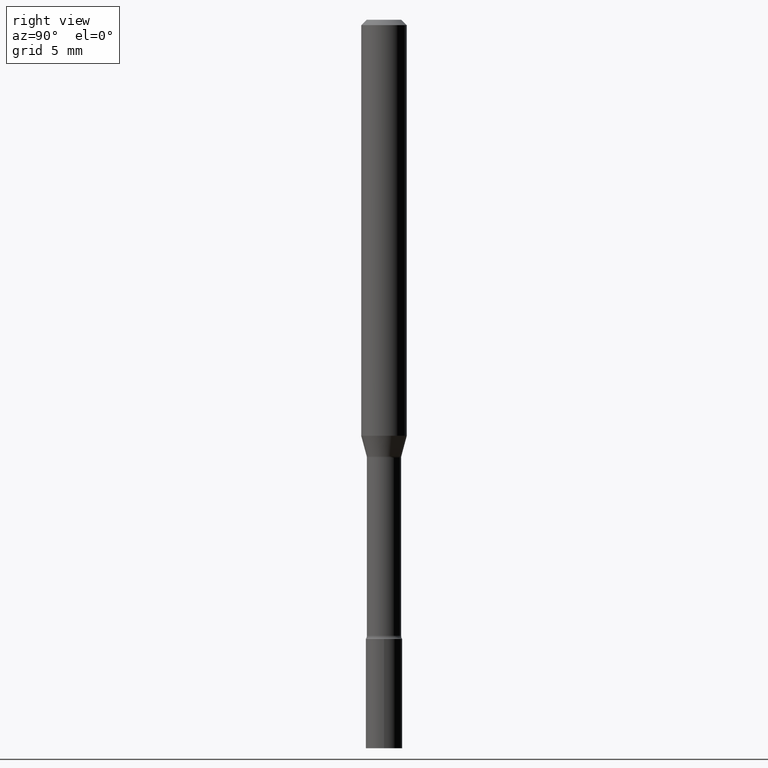
[diagram: clean part render]
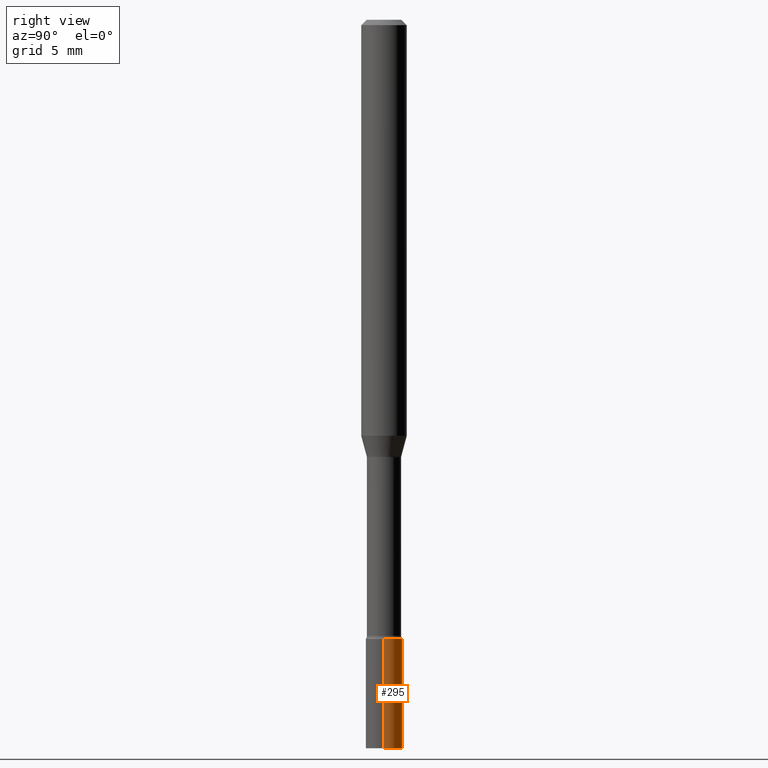
[diagram: same view with one face highlighted and labeled with its STEP entity id]
A machine part, right view. The second image highlights one B-rep face of the part: STEP entity #295.
In plain terms, the highlighted cylindrical surface (edge-blend (fillet) strip) has radius 1.27 mm, axis along (-0, 0, 1).
Its self-contained STEP definition (entity closure, byte-faithful):
#7 = CARTESIAN_POINT ( 'NONE',  ( 0.000000000000000000, 0.000000000000000000, 0.000000000000000000 ) ) ;
#14 = VERTEX_POINT ( 'NONE', #202 ) ;
#27 = CIRCLE ( 'NONE', #496, 0.05000000000000000278 ) ;
#34 = CARTESIAN_POINT ( 'NONE',  ( -0.05000000000000000278, -6.103969108979769176E-15, -2.000000000000000000 ) ) ;
#51 = CARTESIAN_POINT ( 'NONE',  ( 4.157296970514731878E-29, -5.935518276033347214E-15, -1.699999999999999956 ) ) ;
#62 = ORIENTED_EDGE ( 'NONE', *, *, #349, .T. ) ;
#73 = CARTESIAN_POINT ( 'NONE',  ( 0.05000000000000000278, -6.284666409917660550E-15, -1.699999999999999956 ) ) ;
#81 = ORIENTED_EDGE ( 'NONE', *, *, #307, .F. ) ;
#115 = CIRCLE ( 'NONE', #420, 0.05000000000000000278 ) ;
#132 = EDGE_CURVE ( 'NONE', #455, #394, #115, .T. ) ;
#133 = DIRECTION ( 'NONE',  ( -2.445468806185136877E-29, 3.491481338843145188E-15, 1.000000000000000000 ) ) ;
#137 = EDGE_LOOP ( 'NONE', ( #377, #62, #276, #81 ) ) ;
#138 = CARTESIAN_POINT ( 'NONE',  ( 0.05000000000000000278, -3.491481338843133848E-16, 2.438088387897968247E-30 ) ) ;
#142 = DIRECTION ( 'NONE',  ( -2.445468806185136597E-29, 3.491481338843145583E-15, 1.000000000000000000 ) ) ;
#202 = CARTESIAN_POINT ( 'NONE',  ( 0.05000000000000000278, -7.332110811570605290E-15, -2.000000000000000000 ) ) ;
#211 = DIRECTION ( 'NONE',  ( 1.000000000000000000, -6.982962677686274599E-15, 0.000000000000000000 ) ) ;
#252 = VECTOR ( 'NONE', #133, 39.37007874015748143 ) ;
#257 = EDGE_CURVE ( 'NONE', #14, #459, #27, .T. ) ;
#276 = ORIENTED_EDGE ( 'NONE', *, *, #132, .F. ) ;
#291 = LINE ( 'NONE', #299, #252 ) ;
#295 = ADVANCED_FACE ( 'NONE', ( #454 ), #506, .T. ) ;
#299 = CARTESIAN_POINT ( 'NONE',  ( -0.05000000000000000278, 3.552713678800501127E-16, -2.459467545127453311E-30 ) ) ;
#307 = EDGE_CURVE ( 'NONE', #14, #455, #316, .T. ) ;
#314 = DIRECTION ( 'NONE',  ( -2.445468806185136877E-29, 3.491481338843145188E-15, 1.000000000000000000 ) ) ;
#316 = LINE ( 'NONE', #138, #478 ) ;
#349 = EDGE_CURVE ( 'NONE', #459, #394, #291, .T. ) ;
#351 = DIRECTION ( 'NONE',  ( 1.000000000000000000, -6.982962677686267499E-15, 4.876176775795936353E-29 ) ) ;
#377 = ORIENTED_EDGE ( 'NONE', *, *, #257, .T. ) ;
#392 = DIRECTION ( 'NONE',  ( -2.445468806185136597E-29, 3.491481338843145583E-15, 1.000000000000000000 ) ) ;
#394 = VERTEX_POINT ( 'NONE', #464 ) ;
#417 = DIRECTION ( 'NONE',  ( -2.445468806185136597E-29, 3.491481338843145583E-15, 1.000000000000000000 ) ) ;
#420 = AXIS2_PLACEMENT_3D ( 'NONE', #51, #392, #211 ) ;
#422 = AXIS2_PLACEMENT_3D ( 'NONE', #7, #142, #351 ) ;
#454 = FACE_OUTER_BOUND ( 'NONE', #137, .T. ) ;
#455 = VERTEX_POINT ( 'NONE', #73 ) ;
#459 = VERTEX_POINT ( 'NONE', #34 ) ;
#464 = CARTESIAN_POINT ( 'NONE',  ( -0.05000000000000000278, -6.103969108979769176E-15, -1.699999999999999956 ) ) ;
#467 = DIRECTION ( 'NONE',  ( 1.000000000000000000, -6.982962677686274599E-15, 0.000000000000000000 ) ) ;
#478 = VECTOR ( 'NONE', #314, 39.37007874015748143 ) ;
#496 = AXIS2_PLACEMENT_3D ( 'NONE', #500, #417, #467 ) ;
#500 = CARTESIAN_POINT ( 'NONE',  ( 4.890937612370273194E-29, -6.982962677686291165E-15, -2.000000000000000000 ) ) ;
#506 = CYLINDRICAL_SURFACE ( 'NONE', #422, 0.05000000000000000278 ) ;